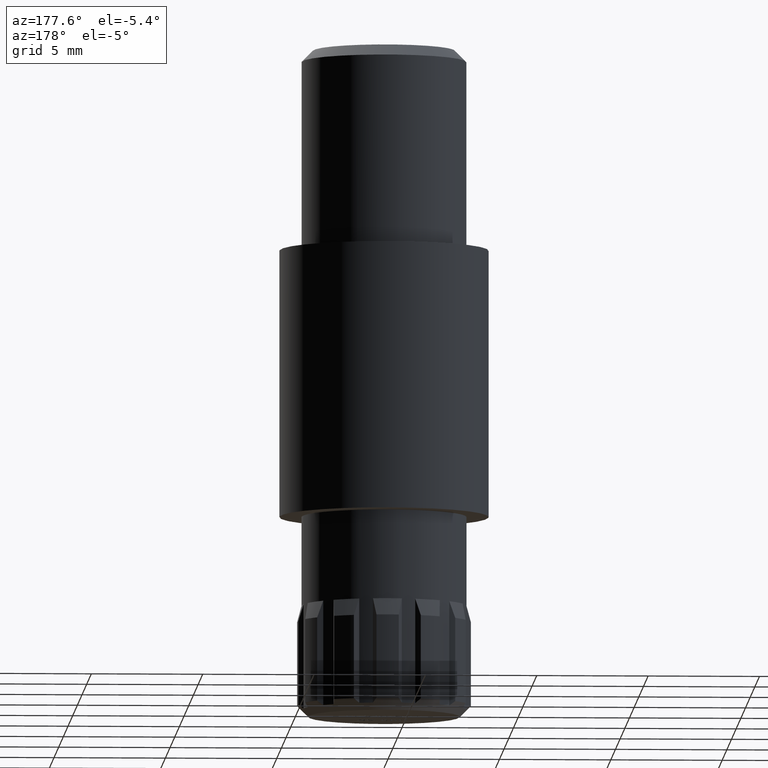
[diagram: clean part render]
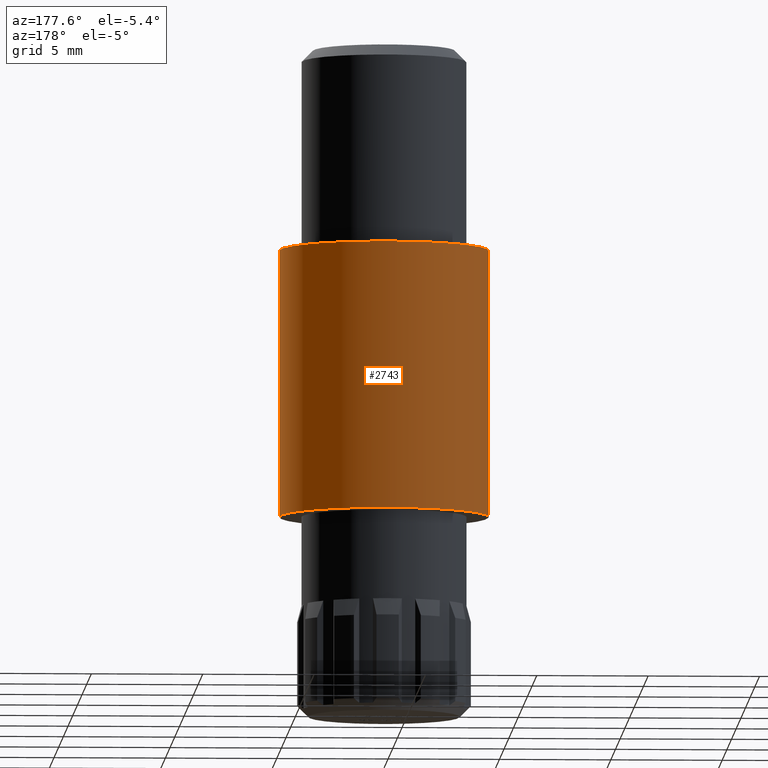
[diagram: same view with one face highlighted and labeled with its STEP entity id]
A machine part, auxiliary view. The second image highlights one B-rep face of the part: STEP entity #2743.
In plain terms, the highlighted cylindrical surface (partial cylindrical patch) has radius 4.7 mm, axis along (-0, -0, -1).
Its self-contained STEP definition (entity closure, byte-faithful):
#4 = CARTESIAN_POINT ( 'NONE',  ( 4.700000000000000200, 5.755839955992559700E-016, 0.0000000000000000000 ) ) ;
#490 = DIRECTION ( 'NONE',  ( 0.0000000000000000000, 0.0000000000000000000, 1.000000000000000000 ) ) ;
#586 = EDGE_CURVE ( 'NONE', #6320, #4044, #5096, .T. ) ;
#668 = EDGE_CURVE ( 'NONE', #6320, #3683, #12885, .T. ) ;
#1429 = DIRECTION ( 'NONE',  ( -1.000000000000000000, 0.0000000000000000000, 0.0000000000000000000 ) ) ;
#1808 = ORIENTED_EDGE ( 'NONE', *, *, #11510, .F. ) ;
#1928 = CARTESIAN_POINT ( 'NONE',  ( 0.0000000000000000000, 0.0000000000000000000, 12.00000000000000000 ) ) ;
#2096 = CARTESIAN_POINT ( 'NONE',  ( -4.700000000000000200, 0.0000000000000000000, 12.00000000000000000 ) ) ;
#2301 = DIRECTION ( 'NONE',  ( 1.000000000000000000, 0.0000000000000000000, 0.0000000000000000000 ) ) ;
#2656 = EDGE_LOOP ( 'NONE', ( #11415, #12598, #6820, #1808 ) ) ;
#2743 = ADVANCED_FACE ( 'NONE', ( #9873 ), #4235, .T. ) ;
#3406 = DIRECTION ( 'NONE',  ( -0.0000000000000000000, -0.0000000000000000000, -1.000000000000000000 ) ) ;
#3683 = VERTEX_POINT ( 'NONE', #2096 ) ;
#3807 = DIRECTION ( 'NONE',  ( 0.0000000000000000000, 0.0000000000000000000, 1.000000000000000000 ) ) ;
#4044 = VERTEX_POINT ( 'NONE', #4 ) ;
#4235 = CYLINDRICAL_SURFACE ( 'NONE', #8182, 4.700000000000000200 ) ;
#4375 = AXIS2_PLACEMENT_3D ( 'NONE', #10142, #3807, #11222 ) ;
#4833 = CARTESIAN_POINT ( 'NONE',  ( 0.0000000000000000000, 0.0000000000000000000, 12.00000000000000000 ) ) ;
#5096 = LINE ( 'NONE', #5939, #10734 ) ;
#5939 = CARTESIAN_POINT ( 'NONE',  ( 4.700000000000000200, 5.755839955992559700E-016, 12.00000000000000000 ) ) ;
#6055 = LINE ( 'NONE', #9764, #11699 ) ;
#6320 = VERTEX_POINT ( 'NONE', #6822 ) ;
#6481 = CARTESIAN_POINT ( 'NONE',  ( -4.700000000000000200, 0.0000000000000000000, 0.0000000000000000000 ) ) ;
#6820 = ORIENTED_EDGE ( 'NONE', *, *, #11689, .T. ) ;
#6822 = CARTESIAN_POINT ( 'NONE',  ( 4.700000000000000200, 5.755839955992559700E-016, 12.00000000000000000 ) ) ;
#7905 = CIRCLE ( 'NONE', #4375, 4.700000000000000200 ) ;
#8182 = AXIS2_PLACEMENT_3D ( 'NONE', #4833, #12164, #1429 ) ;
#8345 = AXIS2_PLACEMENT_3D ( 'NONE', #1928, #490, #2301 ) ;
#8420 = DIRECTION ( 'NONE',  ( -0.0000000000000000000, -0.0000000000000000000, -1.000000000000000000 ) ) ;
#9764 = CARTESIAN_POINT ( 'NONE',  ( -4.700000000000000200, 0.0000000000000000000, 12.00000000000000000 ) ) ;
#9873 = FACE_OUTER_BOUND ( 'NONE', #2656, .T. ) ;
#10142 = CARTESIAN_POINT ( 'NONE',  ( 0.0000000000000000000, 0.0000000000000000000, 0.0000000000000000000 ) ) ;
#10734 = VECTOR ( 'NONE', #8420, 1000.000000000000000 ) ;
#11222 = DIRECTION ( 'NONE',  ( 1.000000000000000000, 0.0000000000000000000, 0.0000000000000000000 ) ) ;
#11415 = ORIENTED_EDGE ( 'NONE', *, *, #668, .F. ) ;
#11510 = EDGE_CURVE ( 'NONE', #3683, #13404, #6055, .T. ) ;
#11689 = EDGE_CURVE ( 'NONE', #4044, #13404, #7905, .T. ) ;
#11699 = VECTOR ( 'NONE', #3406, 1000.000000000000000 ) ;
#12164 = DIRECTION ( 'NONE',  ( -0.0000000000000000000, -0.0000000000000000000, -1.000000000000000000 ) ) ;
#12598 = ORIENTED_EDGE ( 'NONE', *, *, #586, .T. ) ;
#12885 = CIRCLE ( 'NONE', #8345, 4.700000000000000200 ) ;
#13404 = VERTEX_POINT ( 'NONE', #6481 ) ;